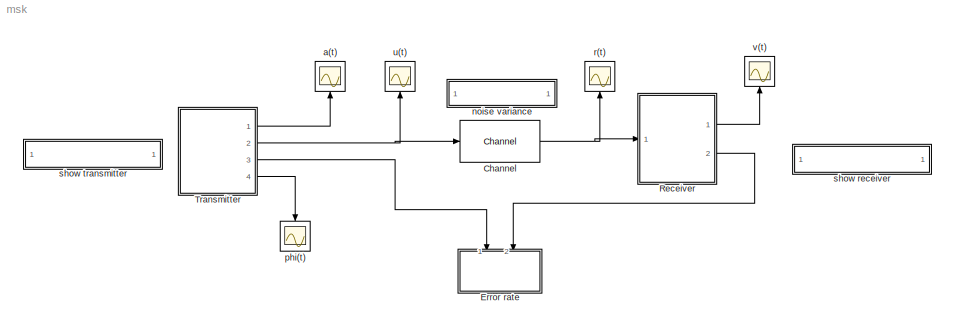
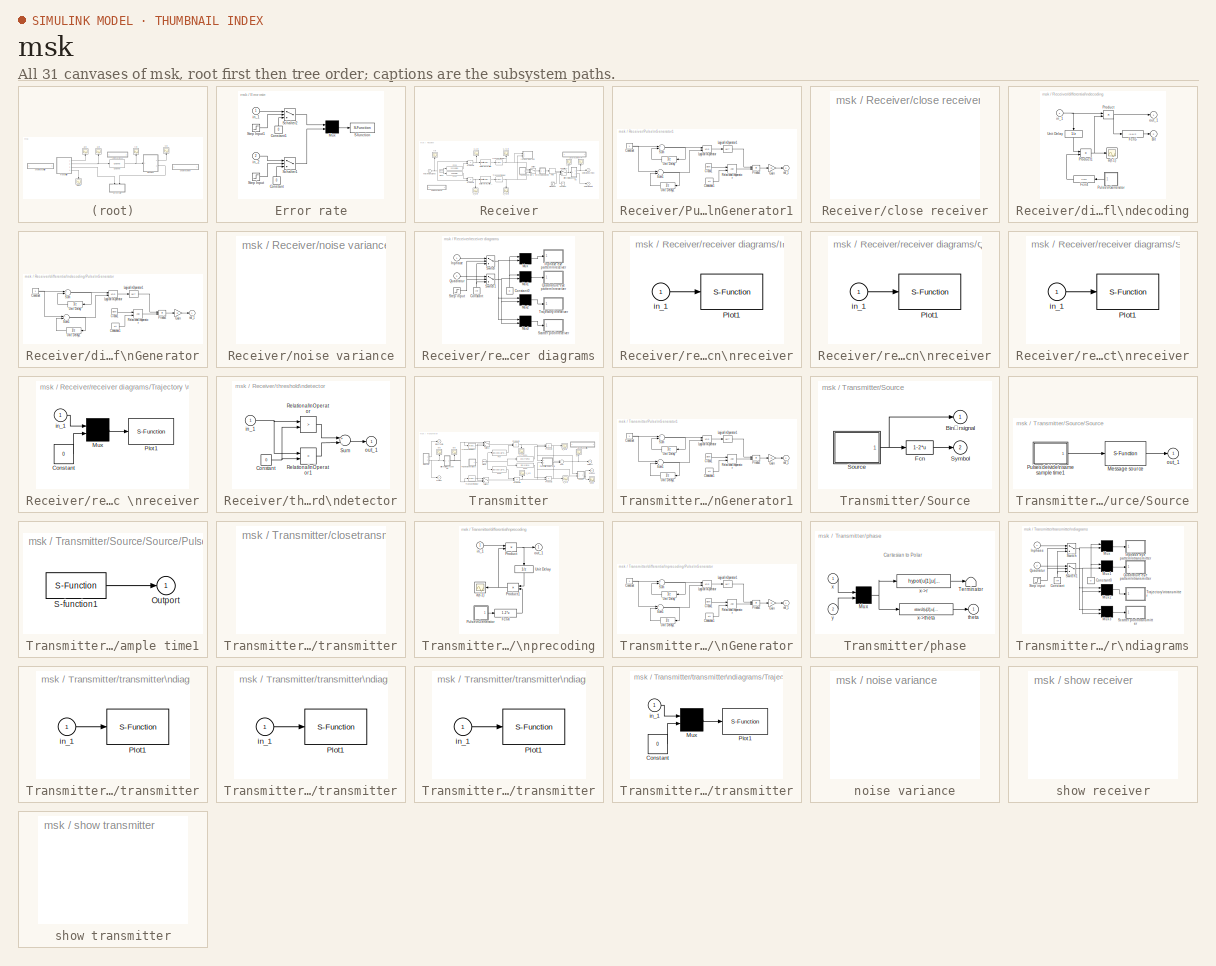
[diagram: thumbnail index - all 31 canvases of the model, root first then tree order]
MODEL msk
KIND model
CONFIG AbsTol = 1
CONFIG FixedStep = auto
CONFIG MaxStep = .025
CONFIG MinStep = .00001
CONFIG RelTol = 1
CONFIG Solver = ode45
CONFIG SolverMode = Auto
CONFIG StartTime = 0.0
CONFIG StopTime = 999999
BLOCK [Reference] Channel  REF=librnew/Channel  (lib defined in mdl_aba7bc8d2a37)
  Ports = [1, 1]
  SourceBlock = librnew/Channel
  SourceType = AWGN channel, fixed parameter
  m = 0
  s = 12345
  variance = 0.001
BLOCK [SubSystem] Error rate
  CopyFcn = sbiterr([],[],[],'CopyBlock')
  DeleteFcn = sbiterr([],[],[],'DeleteBlock')
  LoadFcn = sbiterr([],[],[],'LoadBlock')
  MaskCallbackString = |||
  MaskDescription = Use the input data from the 1st port as the reference signal to detect the number of errors and error rate of the 2nd signal.
  MaskDisplay = disp('Error\\nmeter')
  MaskEnableString = on,on,on,on
  MaskHelp = The signal from the first port must be a scalar. The second input port can be a vector with a delay to the first port signal. The comparison happens only at the sampling point.
  MaskIconFrame = on
  MaskIconOpaque = on
  MaskIconRotate = none
  MaskIconUnits = autoscale
  MaskInitialization = K=@1;num_lin=@2;TDelay=@3;Sample=@4;
  MaskPromptString = Bit per symbol:|Number of digits on display:|Delay between 1st port and 2nd port:|Sample time (sec):
  MaskStyleString = edit,edit,edit,edit
  MaskToolTipString = on,on,on,on
  MaskTunableValueString = on,on,on,on
  MaskType = Symbol/bit error counter
  MaskValueString = 1|10|2|1
  MaskVarAliasString = ,,,
  MaskVisibilityString = on,on,on,on
  NameChangeFcn = sbiterr([],[],[],'NameChange')
  Ports = [2]
  ShowPortLabels = off
  StartFcn = sbiterr([],[],[],'Start')
  StopFcn = sbiterr([],[],[],'Stop')
  TreatAsAtomicUnit = off
BLOCK [Constant] Error rate/Constant
  Value = 0
BLOCK [Constant] Error rate/Constant1
  Value = 0
BLOCK [Mux] Error rate/Mux
  Inputs = 2
  Ports = [2, 1]
BLOCK [S-Function] Error rate/S-function
  FunctionName = sbiterr
  Parameters = num_lin, K, TDelay, Sample
  Ports = [1]
BLOCK [Switch] Error rate/Schalter1
  Threshold = 1
BLOCK [Switch] Error rate/Schalter2
  Threshold = 1
BLOCK [Step] Error rate/Step Input
  SampleTime = 1
  Time = 3
BLOCK [Step] Error rate/Step Input1
  SampleTime = 1
BLOCK [Inport] Error rate/in_1
BLOCK [Inport] Error rate/in_2
  Port = 2
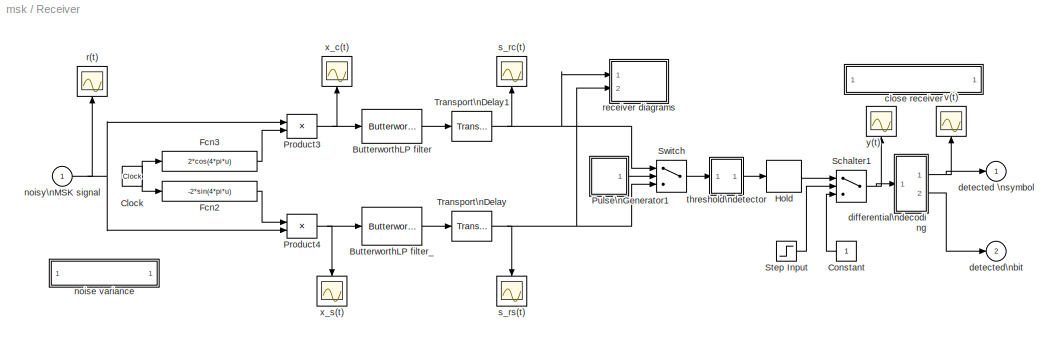
BLOCK [SubSystem] Receiver
  Ports = [1, 2]
  ShowPortLabels = off
  TreatAsAtomicUnit = off
BLOCK [Reference] Receiver/ButterworthLP filter  REF=librnew/ButterworthLP filter  (lib defined in mdl_aba7bc8d2a37)
  MaskParam1 = 5
  Ports = [1, 1]
  SourceBlock = librnew/ButterworthLP filter
  SourceType = Lowpass Butterworth filter
  n = 4
BLOCK [Reference] Receiver/ButterworthLP filter_  REF=librnew/ButterworthLP filter  (lib defined in mdl_aba7bc8d2a37)
  MaskParam1 = 5
  Ports = [1, 1]
  SourceBlock = librnew/ButterworthLP filter
  SourceType = Lowpass Butterworth filter
  n = 4
BLOCK [Clock] Receiver/Clock
  Decimation = 10
BLOCK [Constant] Receiver/Constant
BLOCK [Fcn] Receiver/Fcn2
  Expr = -2*sin(4*pi*u)
BLOCK [Fcn] Receiver/Fcn3
  Expr = 2*cos(4*pi*u)
BLOCK [ZeroOrderHold] Receiver/Hold
BLOCK [Product] Receiver/Product3
  Ports = [2, 1]
BLOCK [Product] Receiver/Product4
  Ports = [2, 1]
BLOCK [SubSystem] Receiver/Pulse\nGenerator1
  MaskCallbackString = |||
  MaskDescription = Pulse Generator.
  MaskDisplay = plot(0,0,100,100,[90,75,75,60,60,35,35,20,20,10],[20,20,80,80,20,20,80,80,20,20])
  MaskEnableString = on,on,on,on
  MaskHelp = Pulse generator which ensures pulse\\ntransitions are hit. Provides a vector of pulses when the height is entered as a vector.\\nUnmask to see how it works.
  MaskIconFrame = on
  MaskIconOpaque = on
  MaskIconRotate = none
  MaskIconUnits = autoscale
  MaskInitialization = Ts=@1; du=@2; ht=@3; stt=@4; ini=ones(length(ht),1); st1=rem(stt,Ts); st2=rem(stt+du,Ts);if(Ts<=1.2*du),ini=zeros(length(ht),1);end;
  MaskPromptString = Pulse period (secs):|Pulse width:|Pulse height:|Pulse start time:
  MaskStyleString = edit,edit,edit,edit
  MaskToolTipString = on,on,on,on
  MaskTunableValueString = on,on,on,on
  MaskType = Pulse Generator
  MaskValueString = 2|1|1|0
  MaskVarAliasString = ,,,
  MaskVisibilityString = on,on,on,on
  Ports = [0, 1]
  ShowPortLabels = off
  TreatAsAtomicUnit = off
BLOCK [Clock] Receiver/Pulse\nGenerator1/Clock1
  Decimation = 10
BLOCK [Constant] Receiver/Pulse\nGenerator1/Constant
BLOCK [Constant] Receiver/Pulse\nGenerator1/Constant1
  Value = stt
BLOCK [Gain] Receiver/Pulse\nGenerator1/Gain
  Gain = ht
BLOCK [Logic] Receiver/Pulse\nGenerator1/Logical\nOperator
  Operator = XOR
  Ports = [2, 1]
BLOCK [Logic] Receiver/Pulse\nGenerator1/Logical\nOperator1
  Inputs = 1
  Operator = NOT
  Ports = [1, 1]
BLOCK [Product] Receiver/Pulse\nGenerator1/Product
  Ports = [2, 1]
BLOCK [RelationalOperator] Receiver/Pulse\nGenerator1/Relational\noperator
BLOCK [Sum] Receiver/Pulse\nGenerator1/Sum
  Inputs = +-
  Ports = [2, 1]
BLOCK [Sum] Receiver/Pulse\nGenerator1/Sum1
  Inputs = +-
  Ports = [2, 1]
BLOCK [UnitDelay] Receiver/Pulse\nGenerator1/Unit Delay
  SampleTime = [Ts,st1]
BLOCK [UnitDelay] Receiver/Pulse\nGenerator1/Unit Delay1
  SampleTime = [Ts,st2]
  X0 = ini
BLOCK [Outport] Receiver/Pulse\nGenerator1/out_1
BLOCK [Switch] Receiver/Schalter1
  Threshold = 1
BLOCK [Step] Receiver/Step Input
  SampleTime = 1
  Time = 2
BLOCK [Switch] Receiver/Switch
  Threshold = 1
BLOCK [TransportDelay] Receiver/Transport\nDelay
  BufferSize = 200
  DelayTime = .5
BLOCK [TransportDelay] Receiver/Transport\nDelay1
  BufferSize = 200
  DelayTime = .5
BLOCK [SubSystem] Receiver/close receiver
  MaskDisplay = disp('close receiver')
  MaskIconFrame = on
  MaskIconOpaque = on
  MaskIconRotate = none
  MaskIconUnits = autoscale
  MaskType = close
  OpenFcn = closmskr
  Ports = []
  ShowPortLabels = off
  TreatAsAtomicUnit = off
BLOCK [Outport] Receiver/detected \nsymbol
BLOCK [Outport] Receiver/detected\nbit
  Port = 2
BLOCK [SubSystem] Receiver/differential\ndecoding
  Ports = [1, 2]
  ShowPortLabels = off
  TreatAsAtomicUnit = off
BLOCK [Outport] Receiver/differential\ndecoding/Bit
  Port = 2
BLOCK [Fcn] Receiver/differential\ndecoding/Fcn4
  Expr = 1-2*u
BLOCK [Fcn] Receiver/differential\ndecoding/Fcn5
  Expr = (1-u)/2
BLOCK [Product] Receiver/differential\ndecoding/Product
  Ports = [2, 1]
BLOCK [Product] Receiver/differential\ndecoding/Product1
  Ports = [2, 1]
BLOCK [SubSystem] Receiver/differential\ndecoding/Pulse\nGenerator
  MaskCallbackString = |||
  MaskDescription = Pulse Generator.
  MaskDisplay = plot(0,0,100,100,[90,75,75,60,60,35,35,20,20,10],[20,20,80,80,20,20,80,80,20,20])
  MaskEnableString = on,on,on,on
  MaskHelp = Pulse generator which ensures pulse\\ntransitions are hit. Provides a vector of pulses when the height is entered as a vector.\\nUnmask to see how it works.
  MaskIconFrame = on
  MaskIconOpaque = on
  MaskIconRotate = none
  MaskIconUnits = autoscale
  MaskInitialization = Ts=@1; du=@2; ht=@3; stt=@4; ini=ones(length(ht),1); st1=rem(stt,Ts); st2=rem(stt+du,Ts);if(Ts<=1.2*du),ini=zeros(length(ht),1);end;
  MaskPromptString = Pulse period (secs):|Pulse width:|Pulse height:|Pulse start time:
  MaskStyleString = edit,edit,edit,edit
  MaskToolTipString = on,on,on,on
  MaskTunableValueString = on,on,on,on
  MaskType = Pulse Generator
  MaskValueString = 2|1|1|0
  MaskVarAliasString = ,,,
  MaskVisibilityString = on,on,on,on
  Ports = [0, 1]
  ShowPortLabels = off
  TreatAsAtomicUnit = off
BLOCK [Clock] Receiver/differential\ndecoding/Pulse\nGenerator/Clock1
  Decimation = 10
BLOCK [Constant] Receiver/differential\ndecoding/Pulse\nGenerator/Constant
BLOCK [Constant] Receiver/differential\ndecoding/Pulse\nGenerator/Constant1
  Value = stt
BLOCK [Gain] Receiver/differential\ndecoding/Pulse\nGenerator/Gain
  Gain = ht
BLOCK [Logic] Receiver/differential\ndecoding/Pulse\nGenerator/Logical\nOperator
  Operator = XOR
  Ports = [2, 1]
BLOCK [Logic] Receiver/differential\ndecoding/Pulse\nGenerator/Logical\nOperator1
  Inputs = 1
  Operator = NOT
  Ports = [1, 1]
BLOCK [Product] Receiver/differential\ndecoding/Pulse\nGenerator/Product
  Ports = [2, 1]
BLOCK [RelationalOperator] Receiver/differential\ndecoding/Pulse\nGenerator/Relational\noperator
BLOCK [Sum] Receiver/differential\ndecoding/Pulse\nGenerator/Sum
  Inputs = +-
  Ports = [2, 1]
BLOCK [Sum] Receiver/differential\ndecoding/Pulse\nGenerator/Sum1
  Inputs = +-
  Ports = [2, 1]
BLOCK [UnitDelay] Receiver/differential\ndecoding/Pulse\nGenerator/Unit Delay
  SampleTime = [Ts,st1]
BLOCK [UnitDelay] Receiver/differential\ndecoding/Pulse\nGenerator/Unit Delay1
  SampleTime = [Ts,st2]
  X0 = ini
BLOCK [Outport] Receiver/differential\ndecoding/Pulse\nGenerator/out_1
BLOCK [UnitDelay] Receiver/differential\ndecoding/Unit Delay
  X0 = 1
BLOCK [Scope] Receiver/differential\ndecoding/a(t-1)
  DataFormat = Array
  NumInputPorts = 1
  Ports = [1]
  TimeRange = 25.000000
  YMax = 1.500000
  YMin = -1.500000
BLOCK [Inport] Receiver/differential\ndecoding/in_1
BLOCK [Outport] Receiver/differential\ndecoding/out_1
BLOCK [SubSystem] Receiver/noise variance
  MaskDisplay = disp('Noise variance')
  MaskIconFrame = on
  MaskIconOpaque = on
  MaskIconRotate = none
  MaskIconUnits = autoscale
  MaskType = noise
  OpenFcn = setnoise
  Ports = []
  ShowPortLabels = off
  TreatAsAtomicUnit = off
BLOCK [Inport] Receiver/noisy\nMSK signal
BLOCK [Scope] Receiver/r(t)
  DataFormat = Array
  NumInputPorts = 1
  Ports = [1]
  TimeRange = 25.000000
  YMax = 2.000000
  YMin = -2.000000
BLOCK [SubSystem] Receiver/receiver diagrams
  MaskCallbackString = ||
  MaskDescription = Eye pattern, signal space trajectory and scatter plot
  MaskDisplay = plot(0,0,100,100,x,y)
  MaskEnableString = on,on,on
  MaskIconFrame = on
  MaskIconOpaque = on
  MaskIconRotate = none
  MaskIconUnits = autoscale
  MaskInitialization = [x, y] = srcsicon(10);
  MaskPromptString = Plot start time:|Samples per time slot (2*T):|Decision offset:
  MaskStyleString = edit,edit,edit
  MaskToolTipString = on,on,on
  MaskTunableValueString = on,on,on
  MaskType = 2D-Diagrams
  MaskValueString = 2|40|0.075
  MaskVarAliasString = ,,
  MaskVariables = starttime=@1;anzahl=@2;offset=@3;
  MaskVisibilityString = on,on,on
  Ports = [2]
  ShowPortLabels = off
  TreatAsAtomicUnit = off
BLOCK [Constant] Receiver/receiver diagrams/Constant
  Value = Inf
BLOCK [Constant] Receiver/receiver diagrams/Constant0
  Value = 0
BLOCK [Inport] Receiver/receiver diagrams/Inphase
BLOCK [SubSystem] Receiver/receiver diagrams/Inphase eye pattern\nreceiver
  CopyFcn = eyesampl([],[],[],'CopyBlock')
  DeleteFcn = eyesampl([],[],[],'DeleteBlock')
  LoadFcn = eyesampl([],[],[],'LoadBlock')
  MaskCallbackString = |||||
  MaskDescription = Produce eye-pattern diagram and/or scatter plot.
  MaskDisplay = plot(0,0,100,100,x,y);
  MaskEnableString = on,on,on,on,on,on
  MaskHelp = This plot opens one, or two plots by assigning the line type parameters. The scatter plot point is selected by the decision point in the first parameter entry. A decision line is drawn in the eye-pattern diagram. The plot is updated at the plot update sample time point.  <repeated x6 — deduplicated; at blocks: Inphase eye pattern\nreceiver, Quadrature eye pattern\nreceiver, Scatter plot\nreceiver, Inphase eye pattern\ntransmitter, Quadrature eye pattern\ntransmitter, Scatter plot\ntransmitter>
  MaskIconFrame = on
  MaskIconOpaque = on
  MaskIconRotate = none
  MaskIconUnits = autoscale
  MaskInitialization = time_range=@1;boundary=@2;kept_length=@3;eye_line=@4;scatter_line=@5;two_d_line=@6;[x,y]=srcsicon(10);
  MaskPromptString = [Symbol interval, plot offset, decision point offset]:|Lower and upper bound of in-coming signal (1x2 vector):|Number of saved traces:|Line-type for eye-pattern diagram (0 for no plot):|Line-type for scatter plot (0 for no plot):|Plot update sample time:  <repeated x6 — deduplicated; at blocks: Inphase eye pattern\nreceiver, Quadrature eye pattern\nreceiver, Scatter plot\nreceiver, Inphase eye pattern\ntransmitter, Quadrature eye pattern\ntransmitter, Scatter plot\ntransmitter>
  MaskStyleString = edit,edit,edit,edit,edit,edit
  MaskToolTipString = on,on,on,on,on,on
  MaskTunableValueString = on,on,on,on,on,on
  MaskType = Eye-diagram/scatter plot
  MaskValueString = [2 0 1+offset]|[-1.5 1.5]|0|'w-/r-'|0|2/anzahl
  MaskVarAliasString = ,,,,,
  MaskVisibilityString = on,on,on,on,on,on
  NameChangeFcn = eyesampl([],[],[],'NameChange')
  Ports = [1]
  ShowPortLabels = off
  StartFcn = eyesampl([],[],[],'Start')
  StopFcn = eyesampl([],[],[],'Stop')
  TreatAsAtomicUnit = off
BLOCK [S-Function] Receiver/receiver diagrams/Inphase eye pattern\nreceiver/Plot1
  FunctionName = eyesampl
  Parameters = time_range, boundary, kept_length, eye_line, scatter_line, two_d_line
  Ports = [1]
BLOCK [Inport] Receiver/receiver diagrams/Inphase eye pattern\nreceiver/in_1
BLOCK [Mux] Receiver/receiver diagrams/Mux
  Inputs = 2
  Ports = [2, 1]
BLOCK [Mux] Receiver/receiver diagrams/Mux1
  Inputs = 2
  Ports = [2, 1]
BLOCK [Mux] Receiver/receiver diagrams/Mux2
  Inputs = 2
  Ports = [2, 1]
BLOCK [Mux] Receiver/receiver diagrams/Mux3
  Inputs = 2
  Ports = [2, 1]
BLOCK [Inport] Receiver/receiver diagrams/Quadratur
  Port = 2
BLOCK [SubSystem] Receiver/receiver diagrams/Quadrature eye pattern\nreceiver
  CopyFcn = eyesampl([],[],[],'CopyBlock')
  DeleteFcn = eyesampl([],[],[],'DeleteBlock')
  LoadFcn = eyesampl([],[],[],'LoadBlock')
  MaskCallbackString = |||||
  MaskDescription = Produce eye-pattern diagram and/or scatter plot.
  MaskDisplay = plot(0,0,100,100,x,y);
  MaskEnableString = on,on,on,on,on,on
  MaskIconFrame = on
  MaskIconOpaque = on
  MaskIconRotate = none
  MaskIconUnits = autoscale
  MaskInitialization = time_range=@1;boundary=@2;kept_length=@3;eye_line=@4;scatter_line=@5;two_d_line=@6;[x,y]=srcsicon(10);
  MaskStyleString = edit,edit,edit,edit,edit,edit
  MaskToolTipString = on,on,on,on,on,on
  MaskTunableValueString = on,on,on,on,on,on
  MaskType = Eye-diagram/scatter plot
  MaskValueString = [2 0 1+offset]|[-1.5 1.5]|0|'w-/r-'|0|2/anzahl
  MaskVarAliasString = ,,,,,
  MaskVisibilityString = on,on,on,on,on,on
  NameChangeFcn = eyesampl([],[],[],'NameChange')
  Ports = [1]
  ShowPortLabels = off
  StartFcn = eyesampl([],[],[],'Start')
  StopFcn = eyesampl([],[],[],'Stop')
  TreatAsAtomicUnit = off
BLOCK [S-Function] Receiver/receiver diagrams/Quadrature eye pattern\nreceiver/Plot1
  FunctionName = eyesampl
  Parameters = time_range, boundary, kept_length, eye_line, scatter_line, two_d_line
  Ports = [1]
BLOCK [Inport] Receiver/receiver diagrams/Quadrature eye pattern\nreceiver/in_1
BLOCK [SubSystem] Receiver/receiver diagrams/Scatter plot\nreceiver
  CopyFcn = eyesampl([],[],[],'CopyBlock')
  DeleteFcn = eyesampl([],[],[],'DeleteBlock')
  LoadFcn = eyesampl([],[],[],'LoadBlock')
  MaskCallbackString = |||||
  MaskDescription = Produce eye-pattern diagram and/or scatter plot.
  MaskDisplay = plot(0,0,100,100,x,y);
  MaskEnableString = on,on,on,on,on,on
  MaskIconFrame = on
  MaskIconOpaque = on
  MaskIconRotate = none
  MaskIconUnits = autoscale
  MaskInitialization = time_range=@1;boundary=@2;kept_length=@3;eye_line=@4;scatter_line=@5;two_d_line=@6;[x,y]=srcsicon(10);
  MaskStyleString = edit,edit,edit,edit,edit,edit
  MaskToolTipString = on,on,on,on,on,on
  MaskTunableValueString = on,on,on,on,on,on
  MaskType = Eye-diagram/scatter plot
  MaskValueString = [1 .5   .999]|[-1.5 1.5]|0|0|'b.'|[.5 offset]
  MaskVarAliasString = ,,,,,
  MaskVisibilityString = on,on,on,on,on,on
  NameChangeFcn = eyesampl([],[],[],'NameChange')
  Ports = [1]
  ShowPortLabels = off
  StartFcn = eyesampl([],[],[],'Start')
  StopFcn = eyesampl([],[],[],'Stop')
  TreatAsAtomicUnit = off
BLOCK [S-Function] Receiver/receiver diagrams/Scatter plot\nreceiver/Plot1
  FunctionName = eyesampl
  Parameters = time_range, boundary, kept_length, eye_line, scatter_line, two_d_line
  Ports = [1]
BLOCK [Inport] Receiver/receiver diagrams/Scatter plot\nreceiver/in_1
BLOCK [Step] Receiver/receiver diagrams/Step input
  SampleTime = 1
  Time = starttime
BLOCK [Switch] Receiver/receiver diagrams/Switch
  Threshold = 1
BLOCK [Switch] Receiver/receiver diagrams/Switch1
  Threshold = 1
BLOCK [SubSystem] Receiver/receiver diagrams/Trajectory \nreceiver
  CopyFcn = eyediasi([],[],[],'CopyBlock')
  DeleteFcn = eyediasi([],[],[],'DeleteBlock')
  LoadFcn = eyediasi([],[],[],'LoadBlock')
  MaskCallbackString = |||||
  MaskDescription = Produce eye-pattern diagram/scatter\nplot/x-y plot with the rising edge of the second input as the decision line.
  MaskDisplay = plot(0,0,100,100,x,y,v,w);
  MaskEnableString = on,on,on,on,on,on
  MaskHelp = This plot opens one, two, or three plots by assigning the line type parameters. The scatter plot point is selected by the rising edge of a trigger signal. A decision line is drawn at the rising edge of the trigger signal.
  MaskIconFrame = on
  MaskIconOpaque = on
  MaskIconRotate = none
  MaskIconUnits = autoscale
  MaskInitialization = time_range=@1;boundary=@2;kept_length=@3;eye_line=@4;scatter_line=@5;two_d_line=@6;[x,y]=srcsicon(10);[v,w]=trigicon(0,25,get_param(gcb,'orientation'),2);
  MaskPromptString = Eye-pattern plot time frame:|Lower and upper bound of in-coming signal (1x2 vector):|Number of saved traces:|Line-type for eye-pattern diagram (0 for no plot):|Line-type for scatter plot (0 for no plot):|Line-type for x-y plot (0 for no plot):
  MaskStyleString = edit,edit,edit,edit,edit,edit
  MaskToolTipString = on,on,on,on,on,on
  MaskTunableValueString = on,on,on,on,on,on
  MaskType = Eye-diagram/scatter plot
  MaskValueString = [2 0 1]|[-1.5 1.5]|0|0|0|'g-'
  MaskVarAliasString = ,,,,,
  MaskVisibilityString = on,on,on,on,on,on
  NameChangeFcn = eyediasi([],[],[],'NameChange')
  Ports = [1]
  ShowPortLabels = off
  StartFcn = eyediasi([],[],[],'Start')
  StopFcn = eyediasi([],[],[],'Stop')
  TreatAsAtomicUnit = off
BLOCK [Constant] Receiver/receiver diagrams/Trajectory \nreceiver/Constant
  Value = 0
BLOCK [Mux] Receiver/receiver diagrams/Trajectory \nreceiver/Mux
  Inputs = 2
  Ports = [2, 1]
BLOCK [S-Function] Receiver/receiver diagrams/Trajectory \nreceiver/Plot1
  FunctionName = eyediasi
  Parameters = time_range, boundary, kept_length, eye_line, scatter_line, two_d_line
  Ports = [1]
BLOCK [Inport] Receiver/receiver diagrams/Trajectory \nreceiver/in_1
BLOCK [Scope] Receiver/s_rc(t)
  DataFormat = Array
  NumInputPorts = 1
  Ports = [1]
  TimeRange = 25.000000
  YMax = 2.000000
  YMin = -2.000000
BLOCK [Scope] Receiver/s_rs(t)
  DataFormat = Array
  NumInputPorts = 1
  Ports = [1]
  TimeRange = 25.000000
  YMax = 2.000000
  YMin = -2.000000
BLOCK [SubSystem] Receiver/threshold\ndetector
  MaskDescription = y = sign(x)
  MaskDisplay = plot(-50,-50,50,50,[-50,50],[0,0],[0,0],[-50,50],[-40,0],[-30,-30],[0,40],[30,30])
  MaskHelp = Sign Function:<path> = 1 if x > 0<path> = 0 if x = 0<path> = -1 if x < 0
  MaskIconFrame = on
  MaskIconOpaque = on
  MaskIconRotate = none
  MaskIconUnits = autoscale
  MaskType = Sign
  Ports = [1, 1]
  ShowPortLabels = off
  TreatAsAtomicUnit = off
BLOCK [Constant] Receiver/threshold\ndetector/Constant
  Value = 0
BLOCK [RelationalOperator] Receiver/threshold\ndetector/Relational\nOperator
  Operator = >
BLOCK [RelationalOperator] Receiver/threshold\ndetector/Relational\nOperator1
  Operator = <
BLOCK [Sum] Receiver/threshold\ndetector/Sum
  Inputs = +-
  Ports = [2, 1]
BLOCK [Inport] Receiver/threshold\ndetector/in_1
BLOCK [Outport] Receiver/threshold\ndetector/out_1
BLOCK [Scope] Receiver/v(t)
  DataFormat = Array
  NumInputPorts = 1
  Ports = [1]
  TimeRange = 25.000000
  YMax = 2.000000
  YMin = -2.000000
BLOCK [Scope] Receiver/x_c(t)
  DataFormat = Array
  NumInputPorts = 1
  Ports = [1]
  TimeRange = 25.000000
  YMax = 2.000000
  YMin = -2.000000
BLOCK [Scope] Receiver/x_s(t)
  DataFormat = Array
  NumInputPorts = 1
  Ports = [1]
  TimeRange = 25.000000
  YMax = 2.000000
  YMin = -2.000000
BLOCK [Scope] Receiver/y(t)
  DataFormat = Array
  NumInputPorts = 1
  Ports = [1]
  TimeRange = 25.000000
  YMax = 2.000000
  YMin = -2.000000
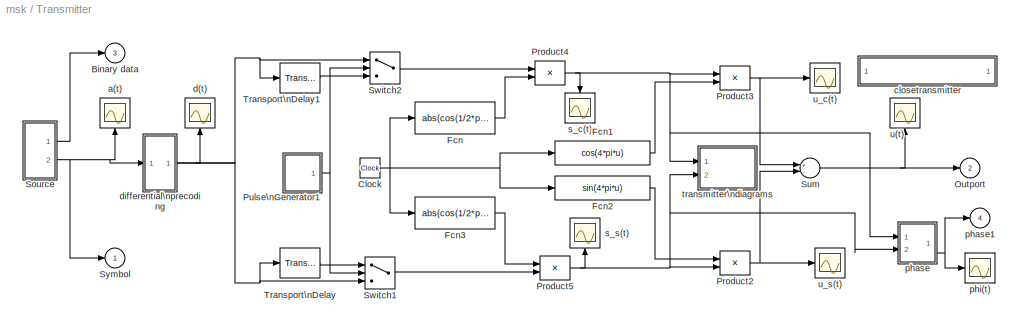
BLOCK [SubSystem] Transmitter
  Ports = [0, 4]
  ShowPortLabels = off
  TreatAsAtomicUnit = off
BLOCK [Outport] Transmitter/Binary data
  Port = 3
BLOCK [Clock] Transmitter/Clock
  Decimation = 10
BLOCK [Fcn] Transmitter/Fcn
  Expr = abs(cos(1/2*pi*u-pi/2))
BLOCK [Fcn] Transmitter/Fcn1
  Expr = cos(4*pi*u)
BLOCK [Fcn] Transmitter/Fcn2
  Expr = sin(4*pi*u)
BLOCK [Fcn] Transmitter/Fcn3
  Expr = abs(cos(1/2*pi*u))
BLOCK [Outport] Transmitter/Outport
  Port = 2
BLOCK [Product] Transmitter/Product2
  Ports = [2, 1]
BLOCK [Product] Transmitter/Product3
  Ports = [2, 1]
BLOCK [Product] Transmitter/Product4
  Ports = [2, 1]
BLOCK [Product] Transmitter/Product5
  Ports = [2, 1]
BLOCK [SubSystem] Transmitter/Pulse\nGenerator1
  MaskCallbackString = |||
  MaskDescription = Pulse Generator.
  MaskDisplay = plot(0,0,100,100,[90,75,75,60,60,35,35,20,20,10],[20,20,80,80,20,20,80,80,20,20])
  MaskEnableString = on,on,on,on
  MaskHelp = Pulse generator which ensures pulse\\ntransitions are hit. Provides a vector of pulses when the height is entered as a vector.\\nUnmask to see how it works.
  MaskIconFrame = on
  MaskIconOpaque = on
  MaskIconRotate = none
  MaskIconUnits = autoscale
  MaskInitialization = Ts=@1; du=@2; ht=@3; stt=@4; ini=ones(length(ht),1); st1=rem(stt,Ts); st2=rem(stt+du,Ts);if(Ts<=1.2*du),ini=zeros(length(ht),1);end;
  MaskPromptString = Pulse period (secs):|Pulse width:|Pulse height:|Pulse start time:
  MaskStyleString = edit,edit,edit,edit
  MaskToolTipString = on,on,on,on
  MaskTunableValueString = on,on,on,on
  MaskType = Pulse Generator
  MaskValueString = 2|1|1|0
  MaskVarAliasString = ,,,
  MaskVisibilityString = on,on,on,on
  Ports = [0, 1]
  ShowPortLabels = off
  TreatAsAtomicUnit = off
BLOCK [Clock] Transmitter/Pulse\nGenerator1/Clock1
  Decimation = 10
BLOCK [Constant] Transmitter/Pulse\nGenerator1/Constant
BLOCK [Constant] Transmitter/Pulse\nGenerator1/Constant1
  Value = stt
BLOCK [Gain] Transmitter/Pulse\nGenerator1/Gain
  Gain = ht
BLOCK [Logic] Transmitter/Pulse\nGenerator1/Logical\nOperator
  Operator = XOR
  Ports = [2, 1]
BLOCK [Logic] Transmitter/Pulse\nGenerator1/Logical\nOperator1
  Inputs = 1
  Operator = NOT
  Ports = [1, 1]
BLOCK [Product] Transmitter/Pulse\nGenerator1/Product
  Ports = [2, 1]
BLOCK [RelationalOperator] Transmitter/Pulse\nGenerator1/Relational\noperator
BLOCK [Sum] Transmitter/Pulse\nGenerator1/Sum
  Inputs = +-
  Ports = [2, 1]
BLOCK [Sum] Transmitter/Pulse\nGenerator1/Sum1
  Inputs = +-
  Ports = [2, 1]
BLOCK [UnitDelay] Transmitter/Pulse\nGenerator1/Unit Delay
  SampleTime = [Ts,st1]
BLOCK [UnitDelay] Transmitter/Pulse\nGenerator1/Unit Delay1
  SampleTime = [Ts,st2]
  X0 = ini
BLOCK [Outport] Transmitter/Pulse\nGenerator1/out_1
BLOCK [SubSystem] Transmitter/Source
  Ports = [0, 2]
  ShowPortLabels = off
  TreatAsAtomicUnit = off
BLOCK [Outport] Transmitter/Source/Binärsignal
BLOCK [Fcn] Transmitter/Source/Fcn
  Expr = 1-2*u
BLOCK [SubSystem] Transmitter/Source/Source
  MaskCallbackString = |||
  MaskDescription = Read from a workspace variable at\nsampling time point.
  MaskDisplay = plot(0,0,100,100,x,y);disp('Rd wksp')
  MaskEnableString = on,on,on,on
  MaskHelp = This block reads from a workspace variable at a given sample time. The column number is the block output vector length. When the simulation reaches the end of the variable (eof), the block will cyclically output from the first row of the variable or output zeros based on the repeat flag entree.
  MaskIconFrame = on
  MaskIconOpaque = on
  MaskIconRotate = none
  MaskIconUnits = autoscale
  MaskInitialization = var=@1;td=@2;ts=td(1);if (length(td)>=2),off=td(2);else off=0;end;cyc=@3;ini=@4;[x,y]=srcsicon(7);
  MaskPromptString = Variable (column_number=block_output_length):|Data output sample time (sec):|Repeat flag (1: repeat read, 0: output zeros after eof).|Initial output:
  MaskStyleString = edit,edit,edit,edit
  MaskToolTipString = on,on,on,on
  MaskTunableValueString = on,on,on,on
  MaskType = Read from workspace
  MaskValueString = randint(1000,1,2)|1|1|1
  MaskVarAliasString = ,,,
  MaskVisibilityString = on,on,on,on
  Ports = [0, 1]
  ShowPortLabels = off
  TreatAsAtomicUnit = off
BLOCK [S-Function] Transmitter/Source/Source/Message source
  FunctionName = trigwksp
  MaskCallbackString = |||
  MaskDescription = The raising edge of input pulse trigger the block output the next row from the workspace variable.
  MaskDisplay = disp('Triggered\\nread')
  MaskEnableString = on,on,on,on
  MaskHelp = This block reads the data from a workspace variable. The output is refreshed at the raising edge of the input pulse.
  MaskIconFrame = on
  MaskIconOpaque = on
  MaskIconRotate = none
  MaskIconUnits = autoscale
  MaskInitialization = var=@1;thd=@2;cyclFlag=@3;ini=@4;
  MaskPromptString = Read the variable:|Threshold for the input pulse:|Cyclic read variable (1) or amend zeros (0).|Output before first trigger:
  MaskStyleString = edit,edit,edit,edit
  MaskToolTipString = on,on,on,on
  MaskTunableValueString = on,on,on,on
  MaskType = Read from workspace
  MaskValueString = var|.1|cyc|ini
  MaskVarAliasString = ,,,
  MaskVisibilityString = on,on,on,on
  Parameters = var,thd,cyclFlag,ini
  Ports = [1, 1]
BLOCK [SubSystem] Transmitter/Source/Source/Pulses deivide\nsame sample time1
  MaskCallbackString = ||
  MaskDescription = Vector pulses with sample rate of each pulse as Sample_time ./Divider.
  MaskDisplay = disp('Vector\\nPulse')
  MaskEnableString = on,on,on
  MaskHelp = This block generator a vector pulses. The output length is the same as the vector defined in \"Divider\". The ith element of the output has the sample time Sample_time/Divider(i). All elements in \"Divider\" must be integers.
  MaskIconFrame = on
  MaskIconOpaque = on
  MaskIconRotate = none
  MaskIconUnits = autoscale
  MaskInitialization = samp_time=@1;out_divid=@2;offset=@3;
  MaskPromptString = Sample time (scalar, sec):|Divider (integer vector):|Offset (have same dimension as Divider:
  MaskStyleString = edit,edit,edit
  MaskToolTipString = on,on,on
  MaskTunableValueString = on,on,on
  MaskType = Pulse generator
  MaskValueString = ts|1|off
  MaskVarAliasString = ,,
  MaskVisibilityString = on,on,on
  Ports = [0, 1]
  ShowPortLabels = off
  TreatAsAtomicUnit = off
BLOCK [Outport] Transmitter/Source/Source/Pulses deivide\nsame sample time1/Outport
BLOCK [S-Function] Transmitter/Source/Source/Pulses deivide\nsame sample time1/S-function1
  FunctionName = homopuls
  Parameters = samp_time, out_divid, offset
  Ports = [0, 1]
BLOCK [Outport] Transmitter/Source/Source/out_1
BLOCK [Outport] Transmitter/Source/Symbol
  Port = 2
BLOCK [Sum] Transmitter/Sum
  Inputs = +-
  Ports = [2, 1]
BLOCK [Switch] Transmitter/Switch1
  Threshold = 1
BLOCK [Switch] Transmitter/Switch2
  Threshold = 1
BLOCK [Outport] Transmitter/Symbol
BLOCK [TransportDelay] Transmitter/Transport\nDelay
  BufferSize = 200
  DelayTime = .999
BLOCK [TransportDelay] Transmitter/Transport\nDelay1
  BufferSize = 200
  DelayTime = .999
BLOCK [Scope] Transmitter/a(t)
  DataFormat = Array
  NumInputPorts = 1
  Ports = [1]
  TimeRange = 25.000000
  YMax = 3.000000
  YMin = -3.000000
BLOCK [SubSystem] Transmitter/closetransmitter
  MaskDisplay = disp('Close transmitter')
  MaskIconFrame = on
  MaskIconOpaque = on
  MaskIconRotate = none
  MaskIconUnits = autoscale
  MaskType = close
  OpenFcn = closmskt
  Ports = []
  ShowPortLabels = off
  TreatAsAtomicUnit = off
BLOCK [Scope] Transmitter/d(t)
  DataFormat = Array
  NumInputPorts = 1
  Ports = [1]
  TimeRange = 12.5
  YMax = 3
  YMin = -3
BLOCK [SubSystem] Transmitter/differential\nprecoding
  Ports = [1, 1]
  ShowPortLabels = off
  TreatAsAtomicUnit = off
BLOCK [Fcn] Transmitter/differential\nprecoding/Fcn4
  Expr = 1-2*u
BLOCK [Product] Transmitter/differential\nprecoding/Product
  Ports = [2, 1]
BLOCK [Product] Transmitter/differential\nprecoding/Product1
  Ports = [2, 1]
BLOCK [SubSystem] Transmitter/differential\nprecoding/Pulse\nGenerator
  MaskCallbackString = |||
  MaskDescription = Pulse Generator.
  MaskDisplay = plot(0,0,100,100,[90,75,75,60,60,35,35,20,20,10],[20,20,80,80,20,20,80,80,20,20])
  MaskEnableString = on,on,on,on
  MaskHelp = Pulse generator which ensures pulse\\ntransitions are hit. Provides a vector of pulses when the height is entered as a vector.\\nUnmask to see how it works.
  MaskIconFrame = on
  MaskIconOpaque = on
  MaskIconRotate = none
  MaskIconUnits = autoscale
  MaskInitialization = Ts=@1; du=@2; ht=@3; stt=@4; ini=ones(length(ht),1); st1=rem(stt,Ts); st2=rem(stt+du,Ts);if(Ts<=1.2*du),ini=zeros(length(ht),1);end;
  MaskPromptString = Pulse period (secs):|Pulse width:|Pulse height:|Pulse start time:
  MaskStyleString = edit,edit,edit,edit
  MaskToolTipString = on,on,on,on
  MaskTunableValueString = on,on,on,on
  MaskType = Pulse Generator
  MaskValueString = 2|1|1|0
  MaskVarAliasString = ,,,
  MaskVisibilityString = on,on,on,on
  Ports = [0, 1]
  ShowPortLabels = off
  TreatAsAtomicUnit = off
BLOCK [Clock] Transmitter/differential\nprecoding/Pulse\nGenerator/Clock1
  Decimation = 10
BLOCK [Constant] Transmitter/differential\nprecoding/Pulse\nGenerator/Constant
BLOCK [Constant] Transmitter/differential\nprecoding/Pulse\nGenerator/Constant1
  Value = stt
BLOCK [Gain] Transmitter/differential\nprecoding/Pulse\nGenerator/Gain
  Gain = ht
BLOCK [Logic] Transmitter/differential\nprecoding/Pulse\nGenerator/Logical\nOperator
  Operator = XOR
  Ports = [2, 1]
BLOCK [Logic] Transmitter/differential\nprecoding/Pulse\nGenerator/Logical\nOperator1
  Inputs = 1
  Operator = NOT
  Ports = [1, 1]
BLOCK [Product] Transmitter/differential\nprecoding/Pulse\nGenerator/Product
  Ports = [2, 1]
BLOCK [RelationalOperator] Transmitter/differential\nprecoding/Pulse\nGenerator/Relational\noperator
BLOCK [Sum] Transmitter/differential\nprecoding/Pulse\nGenerator/Sum
  Inputs = +-
  Ports = [2, 1]
BLOCK [Sum] Transmitter/differential\nprecoding/Pulse\nGenerator/Sum1
  Inputs = +-
  Ports = [2, 1]
BLOCK [UnitDelay] Transmitter/differential\nprecoding/Pulse\nGenerator/Unit Delay
  SampleTime = [Ts,st1]
BLOCK [UnitDelay] Transmitter/differential\nprecoding/Pulse\nGenerator/Unit Delay1
  SampleTime = [Ts,st2]
  X0 = ini
BLOCK [Outport] Transmitter/differential\nprecoding/Pulse\nGenerator/out_1
BLOCK [UnitDelay] Transmitter/differential\nprecoding/Unit Delay
  X0 = 1
BLOCK [Scope] Transmitter/differential\nprecoding/a(t-1)
  DataFormat = Array
  NumInputPorts = 1
  Ports = [1]
  TimeRange = 25.000000
  YMax = 1.500000
  YMin = -1.500000
BLOCK [Inport] Transmitter/differential\nprecoding/in_1
BLOCK [Outport] Transmitter/differential\nprecoding/out_1
BLOCK [SubSystem] Transmitter/phase
  MaskDescription = Tranformation from cartesian to polar\ncoordinates.\nr=sqrt(x^2+y^2), theta=atan(y/x)
  MaskDisplay = plot(0,0,100,100,[24,20,15,20,20],[85,95,85,95,20],[80,20,95,85,95,85],[70,20,20,15,20,24],[56,56,55,52,50,46],[20,26,31,35,38,42])
  MaskHelp = Unmask this block for more help.
  MaskIconFrame = on
  MaskIconOpaque = on
  MaskIconRotate = none
  MaskIconUnits = autoscale
  MaskType = [x,y]->[r,theta]
  Ports = [2, 1]
  ShowPortLabels = off
  TreatAsAtomicUnit = off
BLOCK [Mux] Transmitter/phase/Mux
  Inputs = 2
  Ports = [2, 1]
BLOCK [Terminator] Transmitter/phase/Terminator
BLOCK [Outport] Transmitter/phase/theta
BLOCK [Inport] Transmitter/phase/x
BLOCK [Fcn] Transmitter/phase/x->r
  Expr = hypot(u[1],u[2])
BLOCK [Fcn] Transmitter/phase/x->theta
  Expr = atan2(u[2],u[1])
BLOCK [Inport] Transmitter/phase/y
  Port = 2
BLOCK [Outport] Transmitter/phase1
  Port = 4
BLOCK [Scope] Transmitter/phi(t)
  DataFormat = Array
  NumInputPorts = 1
  Ports = [1]
  TimeRange = 25.000000
  YMax = 3.141593
  YMin = -3.141593
BLOCK [Scope] Transmitter/s_c(t)
  DataFormat = Array
  NumInputPorts = 1
  Ports = [1]
  TimeRange = 12.5
  YMax = 1.5
  YMin = -1.5
BLOCK [Scope] Transmitter/s_s(t)
  DataFormat = Array
  NumInputPorts = 1
  Ports = [1]
  TimeRange = 12.5
  YMax = 1.5
  YMin = -1.5
BLOCK [SubSystem] Transmitter/transmitter\ndiagrams
  MaskCallbackString = ||
  MaskDescription = Eye pattern, signal space trajectory and scatter plot
  MaskDisplay = plot(0,0,100,100,x,y)
  MaskEnableString = on,on,on
  MaskIconFrame = on
  MaskIconOpaque = on
  MaskIconRotate = none
  MaskIconUnits = autoscale
  MaskInitialization = [x, y] = srcsicon(10);
  MaskPromptString = Plot start time:|Samples per time slot (2*T):|Decision offset:
  MaskStyleString = edit,edit,edit
  MaskToolTipString = on,on,on
  MaskTunableValueString = on,on,on
  MaskType = 2D-Diagrams
  MaskValueString = 1|40|0
  MaskVarAliasString = ,,
  MaskVariables = starttime=@1;anzahl=@2;offset=@3;
  MaskVisibilityString = on,on,on
  Ports = [2]
  ShowPortLabels = off
  TreatAsAtomicUnit = off
BLOCK [Constant] Transmitter/transmitter\ndiagrams/Constant
  Value = Inf
BLOCK [Constant] Transmitter/transmitter\ndiagrams/Constant0
  Value = 0
BLOCK [Inport] Transmitter/transmitter\ndiagrams/Inphase
BLOCK [SubSystem] Transmitter/transmitter\ndiagrams/Inphase eye pattern\ntransmitter
  CopyFcn = eyesampl([],[],[],'CopyBlock')
  DeleteFcn = eyesampl([],[],[],'DeleteBlock')
  LoadFcn = eyesampl([],[],[],'LoadBlock')
  MaskCallbackString = |||||
  MaskDescription = Produce eye-pattern diagram and/or scatter plot.
  MaskDisplay = plot(0,0,100,100,x,y);
  MaskEnableString = on,on,on,on,on,on
  MaskIconFrame = on
  MaskIconOpaque = on
  MaskIconRotate = none
  MaskIconUnits = autoscale
  MaskInitialization = time_range=@1;boundary=@2;kept_length=@3;eye_line=@4;scatter_line=@5;two_d_line=@6;[x,y]=srcsicon(10);
  MaskStyleString = edit,edit,edit,edit,edit,edit
  MaskToolTipString = on,on,on,on,on,on
  MaskTunableValueString = on,on,on,on,on,on
  MaskType = Eye-diagram/scatter plot
  MaskValueString = [2 0 1+offset]|[-1.5 1.5]|0|'w-/r-'|0|2/anzahl
  MaskVarAliasString = ,,,,,
  MaskVisibilityString = on,on,on,on,on,on
  NameChangeFcn = eyesampl([],[],[],'NameChange')
  Ports = [1]
  ShowPortLabels = off
  StartFcn = eyesampl([],[],[],'Start')
  StopFcn = eyesampl([],[],[],'Stop')
  TreatAsAtomicUnit = off
BLOCK [S-Function] Transmitter/transmitter\ndiagrams/Inphase eye pattern\ntransmitter/Plot1
  FunctionName = eyesampl
  Parameters = time_range, boundary, kept_length, eye_line, scatter_line, two_d_line
  Ports = [1]
BLOCK [Inport] Transmitter/transmitter\ndiagrams/Inphase eye pattern\ntransmitter/in_1
BLOCK [Mux] Transmitter/transmitter\ndiagrams/Mux
  Inputs = 2
  Ports = [2, 1]
BLOCK [Mux] Transmitter/transmitter\ndiagrams/Mux1
  Inputs = 2
  Ports = [2, 1]
BLOCK [Mux] Transmitter/transmitter\ndiagrams/Mux2
  Inputs = 2
  Ports = [2, 1]
BLOCK [Mux] Transmitter/transmitter\ndiagrams/Mux3
  Inputs = 2
  Ports = [2, 1]
BLOCK [Inport] Transmitter/transmitter\ndiagrams/Quadratur
  Port = 2
BLOCK [SubSystem] Transmitter/transmitter\ndiagrams/Quadrature eye pattern\ntransmitter
  CopyFcn = eyesampl([],[],[],'CopyBlock')
  DeleteFcn = eyesampl([],[],[],'DeleteBlock')
  LoadFcn = eyesampl([],[],[],'LoadBlock')
  MaskCallbackString = |||||
  MaskDescription = Produce eye-pattern diagram and/or scatter plot.
  MaskDisplay = plot(0,0,100,100,x,y);
  MaskEnableString = on,on,on,on,on,on
  MaskIconFrame = on
  MaskIconOpaque = on
  MaskIconRotate = none
  MaskIconUnits = autoscale
  MaskInitialization = time_range=@1;boundary=@2;kept_length=@3;eye_line=@4;scatter_line=@5;two_d_line=@6;[x,y]=srcsicon(10);
  MaskStyleString = edit,edit,edit,edit,edit,edit
  MaskToolTipString = on,on,on,on,on,on
  MaskTunableValueString = on,on,on,on,on,on
  MaskType = Eye-diagram/scatter plot
  MaskValueString = [2 0 1+offset]|[-1.5 1.5]|0|'w-/r-'|0|2/anzahl
  MaskVarAliasString = ,,,,,
  MaskVisibilityString = on,on,on,on,on,on
  NameChangeFcn = eyesampl([],[],[],'NameChange')
  Ports = [1]
  ShowPortLabels = off
  StartFcn = eyesampl([],[],[],'Start')
  StopFcn = eyesampl([],[],[],'Stop')
  TreatAsAtomicUnit = off
BLOCK [S-Function] Transmitter/transmitter\ndiagrams/Quadrature eye pattern\ntransmitter/Plot1
  FunctionName = eyesampl
  Parameters = time_range, boundary, kept_length, eye_line, scatter_line, two_d_line
  Ports = [1]
BLOCK [Inport] Transmitter/transmitter\ndiagrams/Quadrature eye pattern\ntransmitter/in_1
BLOCK [SubSystem] Transmitter/transmitter\ndiagrams/Scatter plot\ntransmitter
  CopyFcn = eyesampl([],[],[],'CopyBlock')
  DeleteFcn = eyesampl([],[],[],'DeleteBlock')
  LoadFcn = eyesampl([],[],[],'LoadBlock')
  MaskCallbackString = |||||
  MaskDescription = Produce eye-pattern diagram and/or scatter plot.
  MaskDisplay = plot(0,0,100,100,x,y);
  MaskEnableString = on,on,on,on,on,on
  MaskIconFrame = on
  MaskIconOpaque = on
  MaskIconRotate = none
  MaskIconUnits = autoscale
  MaskInitialization = time_range=@1;boundary=@2;kept_length=@3;eye_line=@4;scatter_line=@5;two_d_line=@6;[x,y]=srcsicon(10);
  MaskStyleString = edit,edit,edit,edit,edit,edit
  MaskToolTipString = on,on,on,on,on,on
  MaskTunableValueString = on,on,on,on,on,on
  MaskType = Eye-diagram/scatter plot
  MaskValueString = [1 .5 .999]|[-1.5 1.5]|0|0|'b.'|[.5 offset]
  MaskVarAliasString = ,,,,,
  MaskVisibilityString = on,on,on,on,on,on
  NameChangeFcn = eyesampl([],[],[],'NameChange')
  Ports = [1]
  ShowPortLabels = off
  StartFcn = eyesampl([],[],[],'Start')
  StopFcn = eyesampl([],[],[],'Stop')
  TreatAsAtomicUnit = off
BLOCK [S-Function] Transmitter/transmitter\ndiagrams/Scatter plot\ntransmitter/Plot1
  FunctionName = eyesampl
  Parameters = time_range, boundary, kept_length, eye_line, scatter_line, two_d_line
  Ports = [1]
BLOCK [Inport] Transmitter/transmitter\ndiagrams/Scatter plot\ntransmitter/in_1
BLOCK [Step] Transmitter/transmitter\ndiagrams/Step input
  SampleTime = 1
  Time = starttime
BLOCK [Switch] Transmitter/transmitter\ndiagrams/Switch
  Threshold = 1
BLOCK [Switch] Transmitter/transmitter\ndiagrams/Switch1
  Threshold = 1
BLOCK [SubSystem] Transmitter/transmitter\ndiagrams/Trajectory\ntransmitter
  CopyFcn = eyediasi([],[],[],'CopyBlock')
  DeleteFcn = eyediasi([],[],[],'DeleteBlock')
  LoadFcn = eyediasi([],[],[],'LoadBlock')
  MaskCallbackString = |||||
  MaskDescription = Produce eye-pattern diagram/scatter\nplot/x-y plot with the rising edge of the second input as the decision line.
  MaskDisplay = plot(0,0,100,100,x,y,v,w);
  MaskEnableString = on,on,on,on,on,on
  MaskHelp = This plot opens one, two, or three plots by assigning the line type parameters. The scatter plot point is selected by the rising edge of a trigger signal. A decision line is drawn at the rising edge of the trigger signal.
  MaskIconFrame = on
  MaskIconOpaque = on
  MaskIconRotate = none
  MaskIconUnits = autoscale
  MaskInitialization = time_range=@1;boundary=@2;kept_length=@3;eye_line=@4;scatter_line=@5;two_d_line=@6;[x,y]=srcsicon(10);[v,w]=trigicon(0,25,get_param(gcb,'orientation'),2);
  MaskPromptString = Eye-pattern plot time frame:|Lower and upper bound of in-coming signal (1x2 vector):|Number of saved traces:|Line-type for eye-pattern diagram (0 for no plot):|Line-type for scatter plot (0 for no plot):|Line-type for x-y plot (0 for no plot):
  MaskStyleString = edit,edit,edit,edit,edit,edit
  MaskToolTipString = on,on,on,on,on,on
  MaskTunableValueString = on,on,on,on,on,on
  MaskType = Eye-diagram/scatter plot
  MaskValueString = [2 0 1]|[-1.5 1.5]|0|0|0|'g-'
  MaskVarAliasString = ,,,,,
  MaskVisibilityString = on,on,on,on,on,on
  NameChangeFcn = eyediasi([],[],[],'NameChange')
  Ports = [1]
  ShowPortLabels = off
  StartFcn = eyediasi([],[],[],'Start')
  StopFcn = eyediasi([],[],[],'Stop')
  TreatAsAtomicUnit = off
BLOCK [Constant] Transmitter/transmitter\ndiagrams/Trajectory\ntransmitter/Constant
  Value = 0
BLOCK [Mux] Transmitter/transmitter\ndiagrams/Trajectory\ntransmitter/Mux
  Inputs = 2
  Ports = [2, 1]
BLOCK [S-Function] Transmitter/transmitter\ndiagrams/Trajectory\ntransmitter/Plot1
  FunctionName = eyediasi
  Parameters = time_range, boundary, kept_length, eye_line, scatter_line, two_d_line
  Ports = [1]
BLOCK [Inport] Transmitter/transmitter\ndiagrams/Trajectory\ntransmitter/in_1
BLOCK [Scope] Transmitter/u(t)
  DataFormat = Array
  NumInputPorts = 1
  Ports = [1]
  TimeRange = 25.000000
  YMax = 1.500000
  YMin = -1.500000
BLOCK [Scope] Transmitter/u_c(t)
  DataFormat = Array
  NumInputPorts = 1
  Ports = [1]
  TimeRange = 12.5
  YMax = 1.5
  YMin = -1.5
BLOCK [Scope] Transmitter/u_s(t)
  DataFormat = Array
  NumInputPorts = 1
  Ports = [1]
  TimeRange = 12.5
  YMax = 1.5
  YMin = -1.5
BLOCK [Scope] a(t)
  DataFormat = Array
  NumInputPorts = 1
  Ports = [1]
  TimeRange = 12.500000
  YMax = 3
  YMin = -3
BLOCK [SubSystem] noise variance
  MaskDisplay = disp('Noise variance')
  MaskIconFrame = on
  MaskIconOpaque = on
  MaskIconRotate = none
  MaskIconUnits = autoscale
  MaskType = noise
  OpenFcn = setnoise
  Ports = []
  ShowPortLabels = off
  TreatAsAtomicUnit = off
BLOCK [Scope] phi(t)
  DataFormat = Array
  NumInputPorts = 1
  Ports = [1]
  TimeRange = 12.500000
  YMax = 3.14159
  YMin = -3.14159
BLOCK [Scope] r(t)
  DataFormat = Array
  NumInputPorts = 1
  Ports = [1]
  TimeRange = 12.500000
  YMax = 1.5
  YMin = -1.5
BLOCK [SubSystem] show receiver
  MaskDisplay = disp('Receiver')
  MaskIconFrame = on
  MaskIconOpaque = on
  MaskIconRotate = none
  MaskIconUnits = autoscale
  MaskType = open
  OpenFcn = showmskr
  Ports = []
  ShowPortLabels = off
  TreatAsAtomicUnit = off
BLOCK [SubSystem] show transmitter
  MaskDisplay = disp('Transmitter')
  MaskIconFrame = on
  MaskIconOpaque = on
  MaskIconRotate = none
  MaskIconUnits = autoscale
  MaskType = open
  OpenFcn = showmskt
  Ports = []
  ShowPortLabels = off
  TreatAsAtomicUnit = off
BLOCK [Scope] u(t)
  DataFormat = Array
  NumInputPorts = 1
  Ports = [1]
  TimeRange = 12.500000
  YMax = 1.5
  YMin = -1.5
BLOCK [Scope] v(t)
  DataFormat = Array
  NumInputPorts = 1
  Ports = [1]
  TimeRange = 12.500000
  YMax = 3
  YMin = -3
ANNOTATION Transmitter/phase: Cartesian to Polar
NET Channel:1 -> Receiver:1, r(t):1
LINE Error rate/Constant1:1 -> Error rate/Schalter2:3
LINE Error rate/Constant:1 -> Error rate/Schalter1:3
LINE Error rate/Mux:1 -> Error rate/S-function:1
LINE Error rate/Schalter1:1 -> Error rate/Mux:2
LINE Error rate/Schalter2:1 -> Error rate/Mux:1
LINE Error rate/Step Input1:1 -> Error rate/Schalter2:2
LINE Error rate/Step Input:1 -> Error rate/Schalter1:2
LINE Error rate/in_1:1 -> Error rate/Schalter2:1
LINE Error rate/in_2:1 -> Error rate/Schalter1:1
LINE Receiver/ButterworthLP filter:1 -> Receiver/Transport\nDelay1:1
LINE Receiver/ButterworthLP filter_:1 -> Receiver/Transport\nDelay:1
NET Receiver/Clock:1 -> Receiver/Fcn2:1, Receiver/Fcn3:1
LINE Receiver/Constant:1 -> Receiver/Schalter1:3
LINE Receiver/Fcn2:1 -> Receiver/Product4:1
LINE Receiver/Fcn3:1 -> Receiver/Product3:2
LINE Receiver/Hold:1 -> Receiver/Schalter1:1
NET Receiver/Product3:1 -> Receiver/ButterworthLP filter:1, Receiver/x_c(t):1
NET Receiver/Product4:1 -> Receiver/ButterworthLP filter_:1, Receiver/x_s(t):1
LINE Receiver/Pulse\nGenerator1/Clock1:1 -> Receiver/Pulse\nGenerator1/Relational\noperator:1
LINE Receiver/Pulse\nGenerator1/Constant1:1 -> Receiver/Pulse\nGenerator1/Relational\noperator:2
NET Receiver/Pulse\nGenerator1/Constant:1 -> Receiver/Pulse\nGenerator1/Sum1:1, Receiver/Pulse\nGenerator1/Sum:1
LINE Receiver/Pulse\nGenerator1/Gain:1 -> Receiver/Pulse\nGenerator1/out_1:1
LINE Receiver/Pulse\nGenerator1/Logical\nOperator1:1 -> Receiver/Pulse\nGenerator1/Product:1
LINE Receiver/Pulse\nGenerator1/Logical\nOperator:1 -> Receiver/Pulse\nGenerator1/Logical\nOperator1:1
LINE Receiver/Pulse\nGenerator1/Product:1 -> Receiver/Pulse\nGenerator1/Gain:1
LINE Receiver/Pulse\nGenerator1/Relational\noperator:1 -> Receiver/Pulse\nGenerator1/Product:2
NET Receiver/Pulse\nGenerator1/Sum1:1 -> Receiver/Pulse\nGenerator1/Logical\nOperator:2, Receiver/Pulse\nGenerator1/Unit Delay1:1
NET Receiver/Pulse\nGenerator1/Sum:1 -> Receiver/Pulse\nGenerator1/Logical\nOperator:1, Receiver/Pulse\nGenerator1/Unit Delay:1
LINE Receiver/Pulse\nGenerator1/Unit Delay1:1 -> Receiver/Pulse\nGenerator1/Sum1:2
LINE Receiver/Pulse\nGenerator1/Unit Delay:1 -> Receiver/Pulse\nGenerator1/Sum:2
LINE Receiver/Pulse\nGenerator1:1 -> Receiver/Switch:2
NET Receiver/Schalter1:1 -> Receiver/differential\ndecoding:1, Receiver/y(t):1
LINE Receiver/Step Input:1 -> Receiver/Schalter1:2
LINE Receiver/Switch:1 -> Receiver/threshold\ndetector:1
NET Receiver/Transport\nDelay1:1 -> Receiver/Switch:1, Receiver/receiver diagrams:1, Receiver/s_rc(t):1
NET Receiver/Transport\nDelay:1 -> Receiver/Switch:3, Receiver/receiver diagrams:2, Receiver/s_rs(t):1
LINE Receiver/differential\ndecoding/Fcn4:1 -> Receiver/differential\ndecoding/Product1:2
LINE Receiver/differential\ndecoding/Fcn5:1 -> Receiver/differential\ndecoding/Bit:1
NET Receiver/differential\ndecoding/Product1:1 -> Receiver/differential\ndecoding/Product:2, Receiver/differential\ndecoding/a(t-1):1
NET Receiver/differential\ndecoding/Product:1 -> Receiver/differential\ndecoding/Fcn5:1, Receiver/differential\ndecoding/out_1:1
LINE Receiver/differential\ndecoding/Pulse\nGenerator/Clock1:1 -> Receiver/differential\ndecoding/Pulse\nGenerator/Relational\noperator:1
LINE Receiver/differential\ndecoding/Pulse\nGenerator/Constant1:1 -> Receiver/differential\ndecoding/Pulse\nGenerator/Relational\noperator:2
NET Receiver/differential\ndecoding/Pulse\nGenerator/Constant:1 -> Receiver/differential\ndecoding/Pulse\nGenerator/Sum1:1, Receiver/differential\ndecoding/Pulse\nGenerator/Sum:1
LINE Receiver/differential\ndecoding/Pulse\nGenerator/Gain:1 -> Receiver/differential\ndecoding/Pulse\nGenerator/out_1:1
LINE Receiver/differential\ndecoding/Pulse\nGenerator/Logical\nOperator1:1 -> Receiver/differential\ndecoding/Pulse\nGenerator/Product:1
LINE Receiver/differential\ndecoding/Pulse\nGenerator/Logical\nOperator:1 -> Receiver/differential\ndecoding/Pulse\nGenerator/Logical\nOperator1:1
LINE Receiver/differential\ndecoding/Pulse\nGenerator/Product:1 -> Receiver/differential\ndecoding/Pulse\nGenerator/Gain:1
LINE Receiver/differential\ndecoding/Pulse\nGenerator/Relational\noperator:1 -> Receiver/differential\ndecoding/Pulse\nGenerator/Product:2
NET Receiver/differential\ndecoding/Pulse\nGenerator/Sum1:1 -> Receiver/differential\ndecoding/Pulse\nGenerator/Logical\nOperator:2, Receiver/differential\ndecoding/Pulse\nGenerator/Unit Delay1:1
NET Receiver/differential\ndecoding/Pulse\nGenerator/Sum:1 -> Receiver/differential\ndecoding/Pulse\nGenerator/Logical\nOperator:1, Receiver/differential\ndecoding/Pulse\nGenerator/Unit Delay:1
LINE Receiver/differential\ndecoding/Pulse\nGenerator/Unit Delay1:1 -> Receiver/differential\ndecoding/Pulse\nGenerator/Sum1:2
LINE Receiver/differential\ndecoding/Pulse\nGenerator/Unit Delay:1 -> Receiver/differential\ndecoding/Pulse\nGenerator/Sum:2
LINE Receiver/differential\ndecoding/Pulse\nGenerator:1 -> Receiver/differential\ndecoding/Fcn4:1
LINE Receiver/differential\ndecoding/Unit Delay:1 -> Receiver/differential\ndecoding/Product1:1
NET Receiver/differential\ndecoding/in_1:1 -> Receiver/differential\ndecoding/Product:1, Receiver/differential\ndecoding/Unit Delay:1
NET Receiver/differential\ndecoding:1 -> Receiver/detected \nsymbol:1, Receiver/v(t):1
LINE Receiver/differential\ndecoding:2 -> Receiver/detected\nbit:1
NET Receiver/noisy\nMSK signal:1 -> Receiver/Product3:1, Receiver/Product4:2, Receiver/r(t):1
NET Receiver/receiver diagrams/Constant0:1 -> Receiver/receiver diagrams/Mux1:1, Receiver/receiver diagrams/Mux:1
NET Receiver/receiver diagrams/Constant:1 -> Receiver/receiver diagrams/Switch1:3, Receiver/receiver diagrams/Switch:3
LINE Receiver/receiver diagrams/Inphase eye pattern\nreceiver/in_1:1 -> Receiver/receiver diagrams/Inphase eye pattern\nreceiver/Plot1:1
LINE Receiver/receiver diagrams/Inphase:1 -> Receiver/receiver diagrams/Switch:1
LINE Receiver/receiver diagrams/Mux1:1 -> Receiver/receiver diagrams/Quadrature eye pattern\nreceiver:1
LINE Receiver/receiver diagrams/Mux2:1 -> Receiver/receiver diagrams/Trajectory \nreceiver:1
LINE Receiver/receiver diagrams/Mux3:1 -> Receiver/receiver diagrams/Scatter plot\nreceiver:1
LINE Receiver/receiver diagrams/Mux:1 -> Receiver/receiver diagrams/Inphase eye pattern\nreceiver:1
LINE Receiver/receiver diagrams/Quadratur:1 -> Receiver/receiver diagrams/Switch1:1
LINE Receiver/receiver diagrams/Quadrature eye pattern\nreceiver/in_1:1 -> Receiver/receiver diagrams/Quadrature eye pattern\nreceiver/Plot1:1
LINE Receiver/receiver diagrams/Scatter plot\nreceiver/in_1:1 -> Receiver/receiver diagrams/Scatter plot\nreceiver/Plot1:1
NET Receiver/receiver diagrams/Step input:1 -> Receiver/receiver diagrams/Switch1:2, Receiver/receiver diagrams/Switch:2
NET Receiver/receiver diagrams/Switch1:1 -> Receiver/receiver diagrams/Mux1:2, Receiver/receiver diagrams/Mux2:2, Receiver/receiver diagrams/Mux3:2
NET Receiver/receiver diagrams/Switch:1 -> Receiver/receiver diagrams/Mux2:1, Receiver/receiver diagrams/Mux3:1, Receiver/receiver diagrams/Mux:2
LINE Receiver/receiver diagrams/Trajectory \nreceiver/Constant:1 -> Receiver/receiver diagrams/Trajectory \nreceiver/Mux:2
LINE Receiver/receiver diagrams/Trajectory \nreceiver/Mux:1 -> Receiver/receiver diagrams/Trajectory \nreceiver/Plot1:1
LINE Receiver/receiver diagrams/Trajectory \nreceiver/in_1:1 -> Receiver/receiver diagrams/Trajectory \nreceiver/Mux:1
NET Receiver/threshold\ndetector/Constant:1 -> Receiver/threshold\ndetector/Relational\nOperator1:2, Receiver/threshold\ndetector/Relational\nOperator:2
LINE Receiver/threshold\ndetector/Relational\nOperator1:1 -> Receiver/threshold\ndetector/Sum:2
LINE Receiver/threshold\ndetector/Relational\nOperator:1 -> Receiver/threshold\ndetector/Sum:1
LINE Receiver/threshold\ndetector/Sum:1 -> Receiver/threshold\ndetector/out_1:1
NET Receiver/threshold\ndetector/in_1:1 -> Receiver/threshold\ndetector/Relational\nOperator1:1, Receiver/threshold\ndetector/Relational\nOperator:1
LINE Receiver/threshold\ndetector:1 -> Receiver/Hold:1
LINE Receiver:1 -> v(t):1
LINE Receiver:2 -> Error rate:2
NET Transmitter/Clock:1 -> Transmitter/Fcn1:1, Transmitter/Fcn2:1, Transmitter/Fcn3:1, Transmitter/Fcn:1
LINE Transmitter/Fcn1:1 -> Transmitter/Product3:2
LINE Transmitter/Fcn2:1 -> Transmitter/Product2:1
LINE Transmitter/Fcn3:1 -> Transmitter/Product5:1
LINE Transmitter/Fcn:1 -> Transmitter/Product4:2
NET Transmitter/Product2:1 -> Transmitter/Sum:2, Transmitter/u_s(t):1
NET Transmitter/Product3:1 -> Transmitter/Sum:1, Transmitter/u_c(t):1
NET Transmitter/Product4:1 -> Transmitter/Product3:1, Transmitter/phase:1, Transmitter/s_c(t):1, Transmitter/transmitter\ndiagrams:1
NET Transmitter/Product5:1 -> Transmitter/Product2:2, Transmitter/phase:2, Transmitter/s_s(t):1, Transmitter/transmitter\ndiagrams:2
LINE Transmitter/Pulse\nGenerator1/Clock1:1 -> Transmitter/Pulse\nGenerator1/Relational\noperator:1
LINE Transmitter/Pulse\nGenerator1/Constant1:1 -> Transmitter/Pulse\nGenerator1/Relational\noperator:2
NET Transmitter/Pulse\nGenerator1/Constant:1 -> Transmitter/Pulse\nGenerator1/Sum1:1, Transmitter/Pulse\nGenerator1/Sum:1
LINE Transmitter/Pulse\nGenerator1/Gain:1 -> Transmitter/Pulse\nGenerator1/out_1:1
LINE Transmitter/Pulse\nGenerator1/Logical\nOperator1:1 -> Transmitter/Pulse\nGenerator1/Product:1
LINE Transmitter/Pulse\nGenerator1/Logical\nOperator:1 -> Transmitter/Pulse\nGenerator1/Logical\nOperator1:1
LINE Transmitter/Pulse\nGenerator1/Product:1 -> Transmitter/Pulse\nGenerator1/Gain:1
LINE Transmitter/Pulse\nGenerator1/Relational\noperator:1 -> Transmitter/Pulse\nGenerator1/Product:2
NET Transmitter/Pulse\nGenerator1/Sum1:1 -> Transmitter/Pulse\nGenerator1/Logical\nOperator:2, Transmitter/Pulse\nGenerator1/Unit Delay1:1
NET Transmitter/Pulse\nGenerator1/Sum:1 -> Transmitter/Pulse\nGenerator1/Logical\nOperator:1, Transmitter/Pulse\nGenerator1/Unit Delay:1
LINE Transmitter/Pulse\nGenerator1/Unit Delay1:1 -> Transmitter/Pulse\nGenerator1/Sum1:2
LINE Transmitter/Pulse\nGenerator1/Unit Delay:1 -> Transmitter/Pulse\nGenerator1/Sum:2
NET Transmitter/Pulse\nGenerator1:1 -> Transmitter/Switch1:2, Transmitter/Switch2:2
LINE Transmitter/Source/Fcn:1 -> Transmitter/Source/Symbol:1
LINE Transmitter/Source/Source/Message source:1 -> Transmitter/Source/Source/out_1:1
LINE Transmitter/Source/Source/Pulses deivide\nsame sample time1/S-function1:1 -> Transmitter/Source/Source/Pulses deivide\nsame sample time1/Outport:1
LINE Transmitter/Source/Source/Pulses deivide\nsame sample time1:1 -> Transmitter/Source/Source/Message source:1
NET Transmitter/Source/Source:1 -> Transmitter/Source/Binärsignal:1, Transmitter/Source/Fcn:1
LINE Transmitter/Source:1 -> Transmitter/Binary data:1
NET Transmitter/Source:2 -> Transmitter/Symbol:1, Transmitter/a(t):1, Transmitter/differential\nprecoding:1
NET Transmitter/Sum:1 -> Transmitter/Outport:1, Transmitter/u(t):1
LINE Transmitter/Switch1:1 -> Transmitter/Product5:2
LINE Transmitter/Switch2:1 -> Transmitter/Product4:1
LINE Transmitter/Transport\nDelay1:1 -> Transmitter/Switch2:3
LINE Transmitter/Transport\nDelay:1 -> Transmitter/Switch1:1
LINE Transmitter/differential\nprecoding/Fcn4:1 -> Transmitter/differential\nprecoding/Product1:2
NET Transmitter/differential\nprecoding/Product1:1 -> Transmitter/differential\nprecoding/Product:2, Transmitter/differential\nprecoding/a(t-1):1
NET Transmitter/differential\nprecoding/Product:1 -> Transmitter/differential\nprecoding/Unit Delay:1, Transmitter/differential\nprecoding/out_1:1
LINE Transmitter/differential\nprecoding/Pulse\nGenerator/Clock1:1 -> Transmitter/differential\nprecoding/Pulse\nGenerator/Relational\noperator:1
LINE Transmitter/differential\nprecoding/Pulse\nGenerator/Constant1:1 -> Transmitter/differential\nprecoding/Pulse\nGenerator/Relational\noperator:2
NET Transmitter/differential\nprecoding/Pulse\nGenerator/Constant:1 -> Transmitter/differential\nprecoding/Pulse\nGenerator/Sum1:1, Transmitter/differential\nprecoding/Pulse\nGenerator/Sum:1
LINE Transmitter/differential\nprecoding/Pulse\nGenerator/Gain:1 -> Transmitter/differential\nprecoding/Pulse\nGenerator/out_1:1
LINE Transmitter/differential\nprecoding/Pulse\nGenerator/Logical\nOperator1:1 -> Transmitter/differential\nprecoding/Pulse\nGenerator/Product:1
LINE Transmitter/differential\nprecoding/Pulse\nGenerator/Logical\nOperator:1 -> Transmitter/differential\nprecoding/Pulse\nGenerator/Logical\nOperator1:1
LINE Transmitter/differential\nprecoding/Pulse\nGenerator/Product:1 -> Transmitter/differential\nprecoding/Pulse\nGenerator/Gain:1
LINE Transmitter/differential\nprecoding/Pulse\nGenerator/Relational\noperator:1 -> Transmitter/differential\nprecoding/Pulse\nGenerator/Product:2
NET Transmitter/differential\nprecoding/Pulse\nGenerator/Sum1:1 -> Transmitter/differential\nprecoding/Pulse\nGenerator/Logical\nOperator:2, Transmitter/differential\nprecoding/Pulse\nGenerator/Unit Delay1:1
NET Transmitter/differential\nprecoding/Pulse\nGenerator/Sum:1 -> Transmitter/differential\nprecoding/Pulse\nGenerator/Logical\nOperator:1, Transmitter/differential\nprecoding/Pulse\nGenerator/Unit Delay:1
LINE Transmitter/differential\nprecoding/Pulse\nGenerator/Unit Delay1:1 -> Transmitter/differential\nprecoding/Pulse\nGenerator/Sum1:2
LINE Transmitter/differential\nprecoding/Pulse\nGenerator/Unit Delay:1 -> Transmitter/differential\nprecoding/Pulse\nGenerator/Sum:2
LINE Transmitter/differential\nprecoding/Pulse\nGenerator:1 -> Transmitter/differential\nprecoding/Fcn4:1
LINE Transmitter/differential\nprecoding/Unit Delay:1 -> Transmitter/differential\nprecoding/Product1:1
LINE Transmitter/differential\nprecoding/in_1:1 -> Transmitter/differential\nprecoding/Product:1
NET Transmitter/differential\nprecoding:1 -> Transmitter/Switch1:3, Transmitter/Switch2:1, Transmitter/Transport\nDelay1:1, Transmitter/Transport\nDelay:1, Transmitter/d(t):1
NET Transmitter/phase/Mux:1 -> Transmitter/phase/x->r:1, Transmitter/phase/x->theta:1
LINE Transmitter/phase/x->r:1 -> Transmitter/phase/Terminator:1
LINE Transmitter/phase/x->theta:1 -> Transmitter/phase/theta:1
LINE Transmitter/phase/x:1 -> Transmitter/phase/Mux:1
LINE Transmitter/phase/y:1 -> Transmitter/phase/Mux:2
NET Transmitter/phase:1 -> Transmitter/phase1:1, Transmitter/phi(t):1
NET Transmitter/transmitter\ndiagrams/Constant0:1 -> Transmitter/transmitter\ndiagrams/Mux1:1, Transmitter/transmitter\ndiagrams/Mux:1
NET Transmitter/transmitter\ndiagrams/Constant:1 -> Transmitter/transmitter\ndiagrams/Switch1:3, Transmitter/transmitter\ndiagrams/Switch:3
LINE Transmitter/transmitter\ndiagrams/Inphase eye pattern\ntransmitter/in_1:1 -> Transmitter/transmitter\ndiagrams/Inphase eye pattern\ntransmitter/Plot1:1
LINE Transmitter/transmitter\ndiagrams/Inphase:1 -> Transmitter/transmitter\ndiagrams/Switch:1
LINE Transmitter/transmitter\ndiagrams/Mux1:1 -> Transmitter/transmitter\ndiagrams/Quadrature eye pattern\ntransmitter:1
LINE Transmitter/transmitter\ndiagrams/Mux2:1 -> Transmitter/transmitter\ndiagrams/Trajectory\ntransmitter:1
LINE Transmitter/transmitter\ndiagrams/Mux3:1 -> Transmitter/transmitter\ndiagrams/Scatter plot\ntransmitter:1
LINE Transmitter/transmitter\ndiagrams/Mux:1 -> Transmitter/transmitter\ndiagrams/Inphase eye pattern\ntransmitter:1
LINE Transmitter/transmitter\ndiagrams/Quadratur:1 -> Transmitter/transmitter\ndiagrams/Switch1:1
LINE Transmitter/transmitter\ndiagrams/Quadrature eye pattern\ntransmitter/in_1:1 -> Transmitter/transmitter\ndiagrams/Quadrature eye pattern\ntransmitter/Plot1:1
LINE Transmitter/transmitter\ndiagrams/Scatter plot\ntransmitter/in_1:1 -> Transmitter/transmitter\ndiagrams/Scatter plot\ntransmitter/Plot1:1
NET Transmitter/transmitter\ndiagrams/Step input:1 -> Transmitter/transmitter\ndiagrams/Switch1:2, Transmitter/transmitter\ndiagrams/Switch:2
NET Transmitter/transmitter\ndiagrams/Switch1:1 -> Transmitter/transmitter\ndiagrams/Mux1:2, Transmitter/transmitter\ndiagrams/Mux2:2, Transmitter/transmitter\ndiagrams/Mux3:2
NET Transmitter/transmitter\ndiagrams/Switch:1 -> Transmitter/transmitter\ndiagrams/Mux2:1, Transmitter/transmitter\ndiagrams/Mux3:1, Transmitter/transmitter\ndiagrams/Mux:2
LINE Transmitter/transmitter\ndiagrams/Trajectory\ntransmitter/Constant:1 -> Transmitter/transmitter\ndiagrams/Trajectory\ntransmitter/Mux:2
LINE Transmitter/transmitter\ndiagrams/Trajectory\ntransmitter/Mux:1 -> Transmitter/transmitter\ndiagrams/Trajectory\ntransmitter/Plot1:1
LINE Transmitter/transmitter\ndiagrams/Trajectory\ntransmitter/in_1:1 -> Transmitter/transmitter\ndiagrams/Trajectory\ntransmitter/Mux:1
LINE Transmitter:1 -> a(t):1
NET Transmitter:2 -> Channel:1, u(t):1
LINE Transmitter:3 -> Error rate:1
LINE Transmitter:4 -> phi(t):1
note: NET lines group one-source signal fan-out (src -> all destinations, sorted); 1:1 wires keep LINE
note: 3 file-system paths scrubbed to <path> (not preserved elsewhere — flat text is the only slx artifact)
